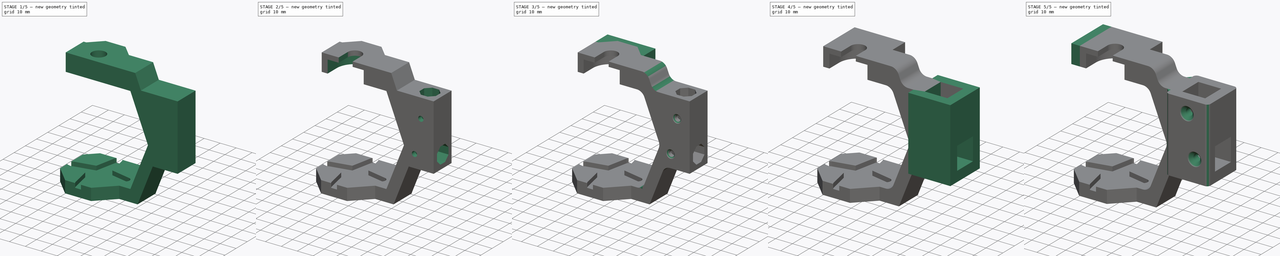
[diagram: build sequence overview — one tinted view per stage of 5, left to right]
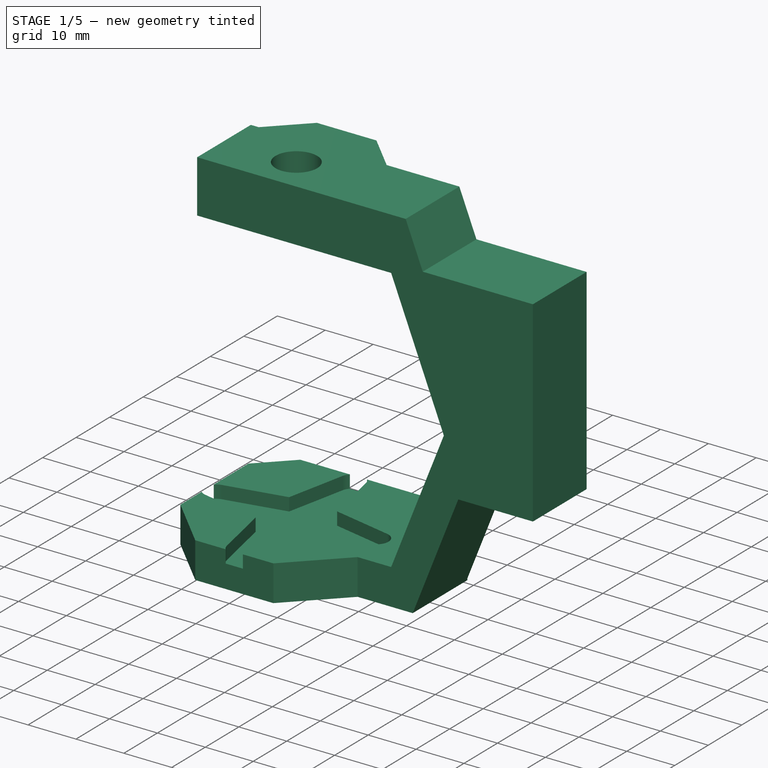
[diagram: stage 1 of 5 — iso view after this stage's code; geometry added in this stage tinted green]
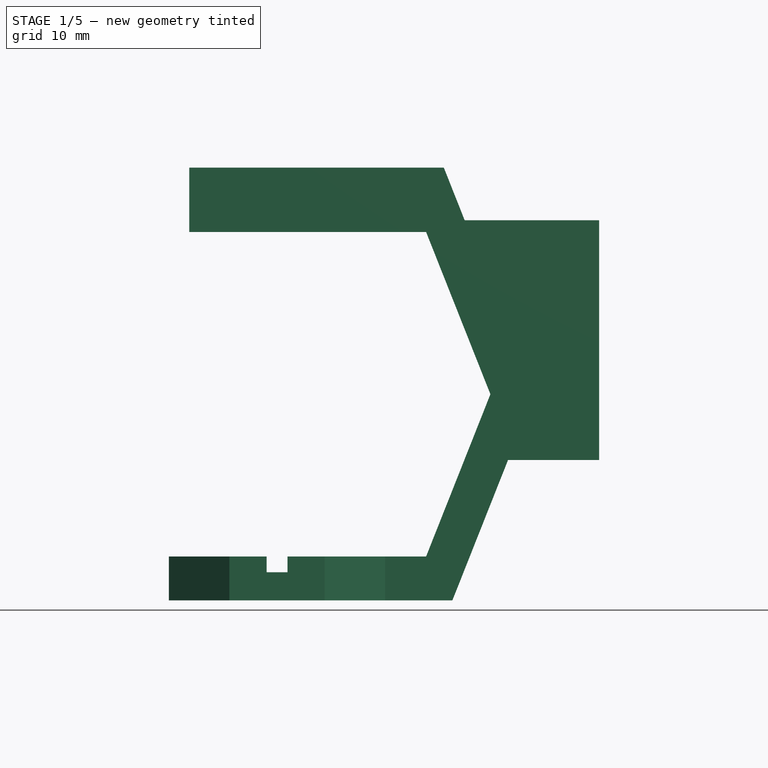
[diagram: stage 1 of 5 — front view after this stage's code; geometry added in this stage tinted green]
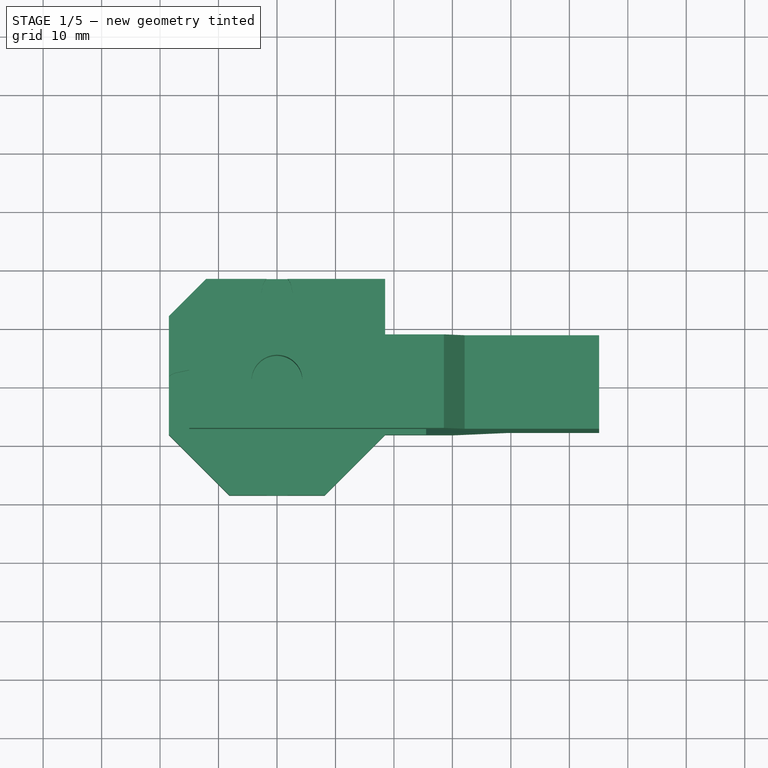
[diagram: stage 1 of 5 — top view after this stage's code; geometry added in this stage tinted green]
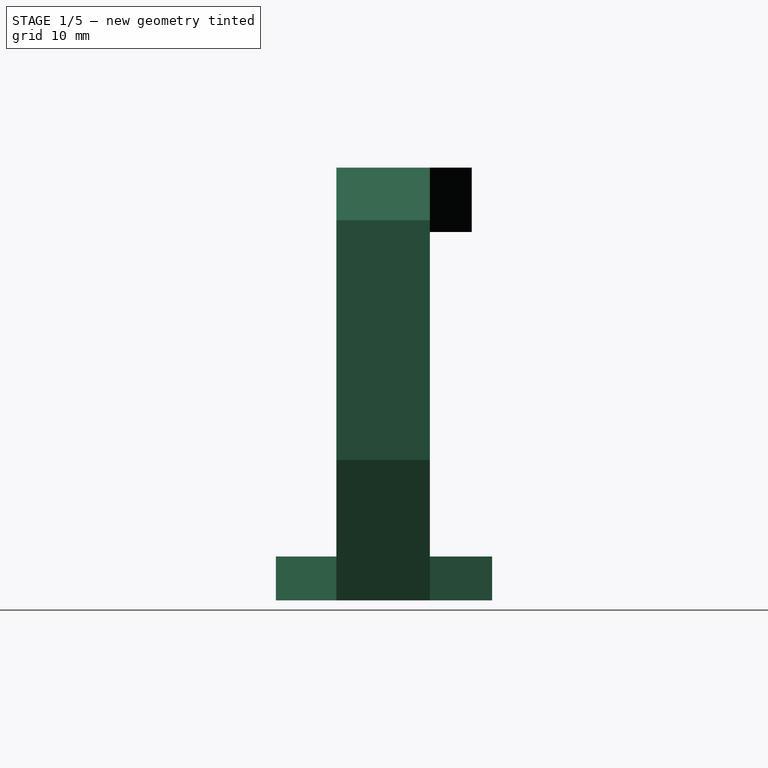
[diagram: stage 1 of 5 — right view after this stage's code; geometry added in this stage tinted green]
FCSTD DOCUMENT  (FreeCAD 0.17R13634 (Git))
Label: SG5010ForkBearing V7
Comment: V3: Added a 1mm triangle to lock the bearing\nV4: Star: Tightened the center: 10.5 -> 10.0 mm
License: All rights reserved
LicenseURL: http://en.wikipedia.org/wiki/All_rights_reserved
objects: Sketcher::SketchObject×23, PartDesign::Pocket×16, PartDesign::Pad×7, PartDesign::Fillet×3, PartDesign::Chamfer×3, PartDesign::Body×1
note: 76 computed .brp shape members not serialized (recipe doc carries the construction recipe); baked Part::Feature solids carry a one-line shape summary decoded from their .brp

FEATURE [Sketcher::SketchObject] Sketch  label="StarBase"
  MapMode = 5
  Support = -> [XY_Plane]
  sketch-geometry (16):
    g0: LineSegment StartX=-18.5 StartY=12.136 StartZ=0 EndX=-12.136 EndY=18.5 EndZ=0
    g1: LineSegment StartX=-12.136 StartY=18.5 StartZ=0 EndX=18.5 EndY=18.5 EndZ=0
    g2: LineSegment StartX=18.5 StartY=18.5 StartZ=0 EndX=18.5 EndY=8.15 EndZ=0
    g3: LineSegment StartX=18.5 StartY=8.15 StartZ=0 EndX=30 EndY=8.15 EndZ=0
    g4: LineSegment StartX=30 StartY=8.15 StartZ=0 EndX=30 EndY=-8.15 EndZ=0
    g5: LineSegment StartX=30 StartY=-8.15 StartZ=0 EndX=18.5 EndY=-8.15 EndZ=0
    g6: LineSegment StartX=18.5 StartY=-8.15 StartZ=0 EndX=8.15 EndY=-18.5 EndZ=0
    g7: LineSegment StartX=8.15 StartY=-18.5 StartZ=0 EndX=-8.15 EndY=-18.5 EndZ=0
    g8: LineSegment StartX=-8.15 StartY=-18.5 StartZ=0 EndX=-18.5 EndY=-8.15 EndZ=0
    g9: LineSegment StartX=-18.5 StartY=-8.15 StartZ=0 EndX=-18.5 EndY=12.136 EndZ=0
    g10: LineSegment [constr] StartX=6.55 StartY=18.5 StartZ=0 EndX=6.55 EndY=0 EndZ=0
    g11: LineSegment [constr] StartX=0 StartY=11.81 StartZ=0 EndX=18.5 EndY=11.81 EndZ=0
    g12: LineSegment [constr] StartX=18.5 StartY=8.15 StartZ=0 EndX=30 EndY=-8.15 EndZ=0
    g13: LineSegment [constr] StartX=30 StartY=8.15 StartZ=0 EndX=18.5 EndY=-8.15 EndZ=0
    g14: GeomPoint X=24.25 Y=0 Z=0
    g15: GeomPoint X=24.25 Y=0 Z=0
  constraints (45):
    c: Coincident(g0,g1)
    c: Horizontal(g1)
    c: Coincident(g1,g2)
    c: Vertical(g2)
    c: Coincident(g2,g3)
    c: Horizontal(g3)
    c: Coincident(g3,g4)
    c: Vertical(g4)
    c: Coincident(g4,g5)
    c: Horizontal(g5)
    c: Coincident(g5,g6)
    c: Coincident(g6,g7)
    c: Horizontal(g7)
    c: Coincident(g7,g8)
    c: Coincident(g8,g9)
    c: Coincident(g9,g0)
    c: Vertical(g9)
    c: DistanceX(g0,g1) = 37
    c: DistanceY(g6,g1) = 37
    c: DistanceX(g2,g5) = 0
    c: Angle(g6) = -2.35619
    c: Angle(g8) = 2.35619
    c: Angle(g0) = 0.785398
    c: PointOnObject(g10,g1)
    c: PointOnObject(g10,g-1)
    c: Vertical(g10)
    c: PointOnObject(g11,g-2)
    c: PointOnObject(g11,g2)
    c: Horizontal(g11)
    c: Equal(g10,g11)
    c: Distance(g11) = 18.5
    c: Distance(g4) = 16.3
    c: Distance(g0) = 9
    c: Equal(g8,g6)
    c: Coincident(g12,g2)
    c: Coincident(g12,g4)
    c: Coincident(g13,g3)
    c: Coincident(g13,g5)
    c: PointOnObject(g14,g13)
    c: Coincident(g15,g14)
    c: PointOnObject(g14,g12)
    c: PointOnObject(g14,g-1)
    c: DistanceX(g-2,g10) = 6.55
    c: Distance(g11,g1) = 6.69
    c: Distance(g3) = 11.5
FEATURE [PartDesign::Pad] Pad  label="Pad - StarBase"
  Length = 7.5
  Length2 = 100
  Profile = -> Sketch
  Type = 0
FEATURE [Sketcher::SketchObject] Sketch001  label="Star"
  MapMode = 5
  Placement = pos=(0,0,7.5) rot=(0,0,1;0rad)
  Support = -> [Pad]
  sketch-geometry (21):
    g0: ArcOfCircle CenterX=0 CenterY=16.75 CenterZ=0 NormalX=0 NormalY=0 NormalZ=1 AngleXU=0 Radius=2.5 StartAngle=0.205271 EndAngle=2.93632
    g1: ArcOfCircle CenterX=-16.75 CenterY=0 CenterZ=0 NormalX=0 NormalY=0 NormalZ=1 AngleXU=0 Radius=2.5 StartAngle=1.77607 EndAngle=4.50712
    g2: ArcOfCircle CenterX=0 CenterY=-16.75 CenterZ=0 NormalX=0 NormalY=0 NormalZ=1 AngleXU=0 Radius=2.5 StartAngle=3.34686 EndAngle=6.07791
    g3: ArcOfCircle CenterX=16.75 CenterY=0 CenterZ=0 NormalX=0 NormalY=0 NormalZ=1 AngleXU=0 Radius=2.5 StartAngle=4.91766 EndAngle=7.64871
    g4: GeomPoint X=-5 Y=5 Z=0
    g5: GeomPoint X=5 Y=5 Z=0
    g6: GeomPoint X=5 Y=-5 Z=0
    g7: GeomPoint X=-5 Y=-5 Z=0
    g8: LineSegment StartX=-2.44751 StartY=17.2596 StartZ=0 EndX=-5 EndY=5 EndZ=0
    g9: LineSegment StartX=-5 StartY=5 StartZ=0 EndX=-17.2596 EndY=2.44751 EndZ=0
    g10: LineSegment StartX=-17.2596 StartY=-2.44751 StartZ=0 EndX=-5 EndY=-5 EndZ=0
    g11: LineSegment StartX=-5 StartY=-5 StartZ=0 EndX=-2.44751 EndY=-17.2596 EndZ=0
    g12: LineSegment StartX=2.44751 StartY=-17.2596 StartZ=0 EndX=5 EndY=-5 EndZ=0
    g13: LineSegment StartX=5 StartY=-5 StartZ=0 EndX=17.2596 EndY=-2.44751 EndZ=0
    g14: LineSegment StartX=17.2596 StartY=2.44751 StartZ=0 EndX=5 EndY=5 EndZ=0
    g15: LineSegment StartX=5 StartY=5 StartZ=0 EndX=2.44751 EndY=17.2596 EndZ=0
    g16: LineSegment [constr] StartX=0 StartY=0 StartZ=0 EndX=16.75 EndY=0 EndZ=0
    g17: LineSegment [constr] StartX=0 StartY=0 StartZ=0 EndX=0 EndY=16.75 EndZ=0
    g18: GeomPoint X=0 Y=19.25 Z=0
    g19: GeomPoint X=0 Y=19.25 Z=0
    g20: GeomPoint X=0 Y=-19.25 Z=0
  constraints (41):
    c: PointOnObject(g0,g-2)
    c: PointOnObject(g1,g-1)
    c: PointOnObject(g2,g-2)
    c: Equal(g0,g3)
    c: Equal(g3,g2)
    c: Equal(g2,g1)
    c: Symmetric(g1,g3,g-2)
    c: Symmetric(g0,g2,g-1)
    c: Symmetric(g4,g5,g-2)
    c: Symmetric(g5,g6,g-1)
    c: Symmetric(g6,g7,g-2)
    c: Coincident(g8,g4)
    c: Coincident(g9,g4)
    c: Coincident(g10,g7)
    c: Coincident(g11,g7)
    c: Coincident(g12,g6)
    c: Coincident(g13,g6)
    c: Coincident(g14,g5)
    c: Coincident(g15,g5)
    c: Coincident(g16,g-1)
    c: Coincident(g16,g3)
    c: Coincident(g17,g-1)
    c: Coincident(g17,g0)
    c: Equal(g17,g16)
    c: Tangent(g8,g0) = -1.5708
    c: Tangent(g15,g0) = -1.5708
    c: Tangent(g13,g3) = -1.5708
    c: Distance(g5,g6) = 10
    c: PointOnObject(g18,g0)
    c: Coincident(g19,g18)
    c: PointOnObject(g18,g-2)
    c: PointOnObject(g20,g-2)
    c: PointOnObject(g20,g2)
    c: Distance(g20,g18) = 38.5
    c: Distance(g7,g6) = 10
    c: Tangent(g12,g2) = -1.5708
    c: Tangent(g11,g2) = -1.5708
    c: Tangent(g10,g1) = -1.5708
    c: Tangent(g9,g1) = -1.5708
    c: Tangent(g14,g3) = -1.5708
    c: Radius(g0) = 2.5
FEATURE [PartDesign::Pocket] Pocket  label="Pocket - Star"
  BaseFeature = -> Pad
  Length = 2.7
  Length2 = 100
  Profile = -> Sketch001
  Type = 0
FEATURE [Sketcher::SketchObject] Sketch002  label="ForkProfile"
  ExternalGeometry = -> [Pocket]
  MapMode = 5
  Placement = pos=(0,-8.15,0) rot=(1,0,0;1.5708rad)
  Support = -> [Pocket]
  sketch-geometry (12):
    g0: LineSegment StartX=30 StartY=0 StartZ=0 EndX=39.5135 EndY=24 EndZ=0
    g1: LineSegment StartX=39.5135 StartY=24 StartZ=0 EndX=55.1 EndY=24 EndZ=0
    g2: LineSegment StartX=55.1 StartY=24 StartZ=0 EndX=55.1 EndY=65 EndZ=0
    g3: LineSegment StartX=55.1 StartY=65 StartZ=0 EndX=32.1 EndY=65 EndZ=0
    g4: LineSegment StartX=32.1 StartY=65 StartZ=0 EndX=28.5324 EndY=74 EndZ=0
    g5: LineSegment StartX=28.5324 StartY=74 StartZ=0 EndX=-25.5 EndY=74 EndZ=0
    g6: LineSegment StartX=-25.5 StartY=74 StartZ=0 EndX=-25.5 EndY=63 EndZ=0
    g7: LineSegment StartX=-25.5 StartY=63 StartZ=0 EndX=25.5 EndY=63 EndZ=0
    g8: LineSegment StartX=25.5 StartY=63 StartZ=0 EndX=36.5 EndY=35.25 EndZ=0
    g9: GeomPoint X=47.1 Y=65 Z=0
    g10: LineSegment StartX=36.5 StartY=35.25 StartZ=0 EndX=25.5 EndY=7.5 EndZ=0
    g11: LineSegment StartX=30 StartY=0 StartZ=0 EndX=25.5 EndY=7.5 EndZ=0
  constraints (34):
    c: Coincident(g-4,g0)
    c: Coincident(g0,g1)
    c: Horizontal(g1)
    c: Coincident(g1,g2)
    c: Vertical(g2)
    c: Coincident(g2,g3)
    c: Horizontal(g3)
    c: Coincident(g3,g4)
    c: Coincident(g4,g5)
    c: Horizontal(g5)
    c: Coincident(g5,g6)
    c: Vertical(g6)
    c: Coincident(g6,g7)
    c: Horizontal(g7)
    c: Coincident(g7,g8)
    c: Distance(g3) = 23
    c: Distance(g2) = 41
    c: PointOnObject(g9,g3)
    c: DistanceX(g9,g2) = 8
    c: DistanceX(g-2,g9) = 47.1
    c: Coincident(g10,g8)
    c: PointOnObject(g10,g-3)
    c: Parallel(g0,g10)
    c: Distance(g10,g-3) = 7
    c: Parallel(g8,g4)
    c: Equal(g8,g10)
    c: DistanceX(g10,g8) = 11
    c: DistanceY(g-3,g7) = 55.5
    c: DistanceY(g0,g0) = 24
    c: DistanceX(g7,g10) = 0
    c: Distance(g6) = 11
    c: Symmetric(g6,g7,g-2)
    c: Coincident(g11,g0)
    c: Coincident(g11,g10)
FEATURE [PartDesign::Pad] Pad001  label="Pad - ForkProfile"
  BaseFeature = -> Pocket
  Length = 16
  Length2 = 100
  Profile = -> Sketch002
  Reversed = true
  Type = 0
FEATURE [Sketcher::SketchObject] Sketch003  label="BearingOctagon"
  MapMode = 5
  Placement = pos=(0,0,74) rot=(0,0,1;0rad)
  Support = -> [Pad001]
  sketch-geometry (9):
    g0: LineSegment StartX=6.2132 StartY=-15 StartZ=0 EndX=15 EndY=-6.2132 EndZ=0
    g1: LineSegment StartX=15 StartY=-6.2132 StartZ=0 EndX=15 EndY=6.2132 EndZ=0
    g2: LineSegment StartX=15 StartY=6.2132 StartZ=0 EndX=6.2132 EndY=15 EndZ=0
    g3: LineSegment StartX=6.2132 StartY=15 StartZ=0 EndX=-6.2132 EndY=15 EndZ=0
    g4: LineSegment StartX=-6.2132 StartY=15 StartZ=0 EndX=-15 EndY=6.2132 EndZ=0
    g5: LineSegment StartX=-15 StartY=6.2132 StartZ=0 EndX=-15 EndY=-6.2132 EndZ=0
    g6: LineSegment StartX=-15 StartY=-6.2132 StartZ=0 EndX=-6.2132 EndY=-15 EndZ=0
    g7: LineSegment StartX=-6.2132 StartY=-15 StartZ=0 EndX=6.2132 EndY=-15 EndZ=0
    g8: Circle [constr] CenterX=0 CenterY=0 CenterZ=0 NormalX=0 NormalY=0 NormalZ=1 AngleXU=0 Radius=16.2359
  constraints (20):
    c: Coincident(g0,g1)
    c: Coincident(g1,g2)
    c: Coincident(g2,g3)
    c: Coincident(g3,g4)
    c: Coincident(g4,g5)
    c: Coincident(g5,g6)
    c: Coincident(g6,g7)
    c: Coincident(g7,g0)
    c: Equal(g0, g1-g7) x7
    c: PointOnObject(g0,g8)
    c: PointOnObject(g1,g8)
    c: PointOnObject(g2,g8)
    c: PointOnObject(g3,g8)
    c: PointOnObject(g4,g8)
    c: PointOnObject(g5,g8)
    c: PointOnObject(g6,g8)
    c: PointOnObject(g7,g8)
    c: Horizontal(g3)
    c: Distance(g4,g1) = 30
    c: Coincident(g8,g-1)
FEATURE [PartDesign::Pad] Pad002  label="Pad - BearingOctagon"
  BaseFeature = -> Pad001
  Length = 11
  Length2 = 100
  Profile = -> Sketch003
  Reversed = true
  Type = 0
FEATURE [Sketcher::SketchObject] Sketch004  label="BearingOctagonCut"
  ExternalGeometry = -> [Pad002]
  MapMode = 5
  Placement = pos=(0,0,63) rot=(1,0,0;3.14159rad)
  Support = -> [Pad002]
  sketch-geometry (6):
    g0: LineSegment StartX=13.0632 StartY=8.15 StartZ=0 EndX=13.0632 EndY=25.4 EndZ=0
    g1: LineSegment StartX=13.0632 StartY=25.4 StartZ=0 EndX=-41.22 EndY=25.4 EndZ=0
    g2: LineSegment StartX=-41.22 StartY=25.4 StartZ=0 EndX=-41.22 EndY=-11.13 EndZ=0
    g3: LineSegment StartX=-41.22 StartY=-11.13 StartZ=0 EndX=-15 EndY=-11.13 EndZ=0
    g4: LineSegment StartX=-15 StartY=-11.13 StartZ=0 EndX=-15 EndY=8.15 EndZ=0
    g5: LineSegment StartX=-15 StartY=8.15 StartZ=0 EndX=13.0632 EndY=8.15 EndZ=0
  constraints (17):
    c: Coincident(g-3,g0)
    c: Vertical(g0)
    c: Coincident(g0,g1)
    c: Horizontal(g1)
    c: Coincident(g1,g2)
    c: Vertical(g2)
    c: Coincident(g2,g3)
    c: Horizontal(g3)
    c: Coincident(g3,g4)
    c: Vertical(g4)
    c: Coincident(g4,g5)
    c: Coincident(g5,g0)
    c: Horizontal(g5)
    c: PointOnObject(g-6,g4)
    c: Distance(g3) = 26.22
    c: Distance(g2) = 36.53
    c: Distance(g0) = 17.25
FEATURE [PartDesign::Pocket] Pocket001  label="Pocket - BearingOctagonCut"
  BaseFeature = -> Pad002
  Length = 5
  Length2 = 100
  Profile = -> Sketch004
  Type = 1
FEATURE [Sketcher::SketchObject] Sketch005  label="AxisHole"
  MapMode = 5
  Placement = pos=(0,0,74) rot=(0,0,1;0rad)
  Support = -> [Pocket001]
  sketch-geometry (1):
    g0: Circle CenterX=0 CenterY=0 CenterZ=0 NormalX=0 NormalY=0 NormalZ=1 AngleXU=0 Radius=4.35
  constraints (2):
    c: Coincident(g0,g-1)
    c: Radius(g0) = 4.35
FEATURE [PartDesign::Pocket] Pocket002  label="Pocket - AxisHole"
  BaseFeature = -> Pocket001
  Length = 11
  Length2 = 100
  Profile = -> Sketch005
  Type = 0
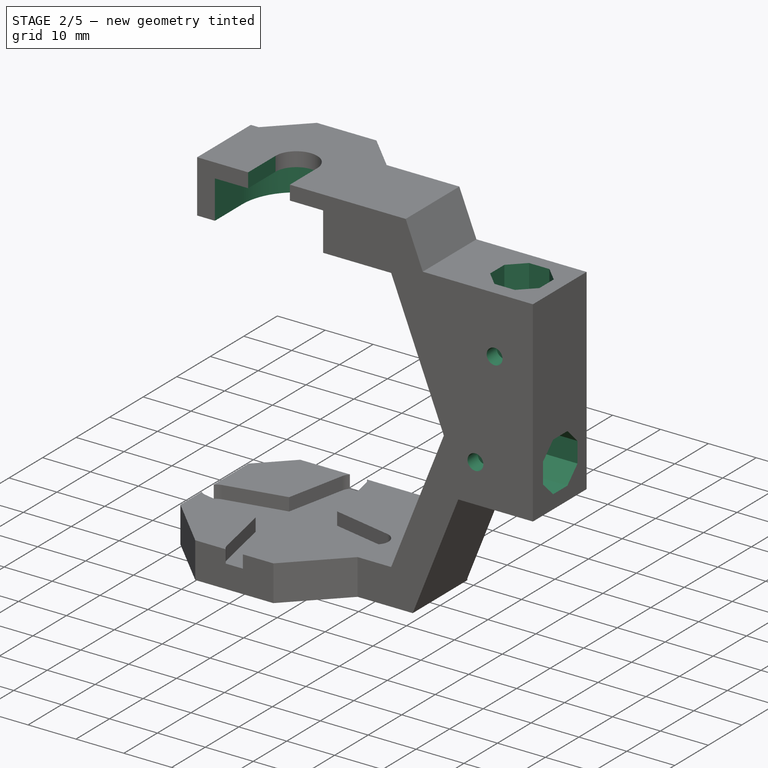
[diagram: stage 2 of 5 — iso view after this stage's code; geometry added in this stage tinted green]
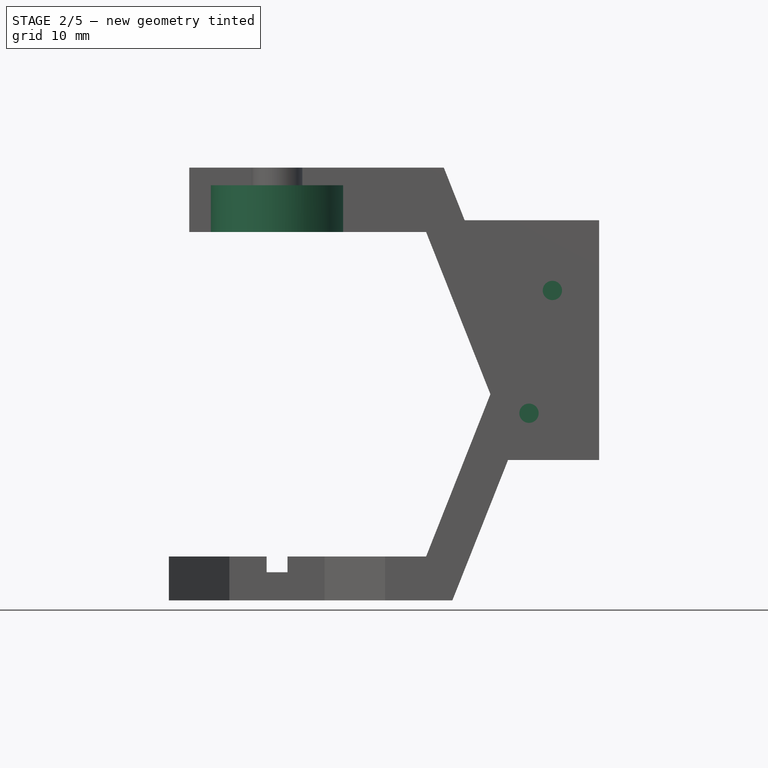
[diagram: stage 2 of 5 — front view after this stage's code; geometry added in this stage tinted green]
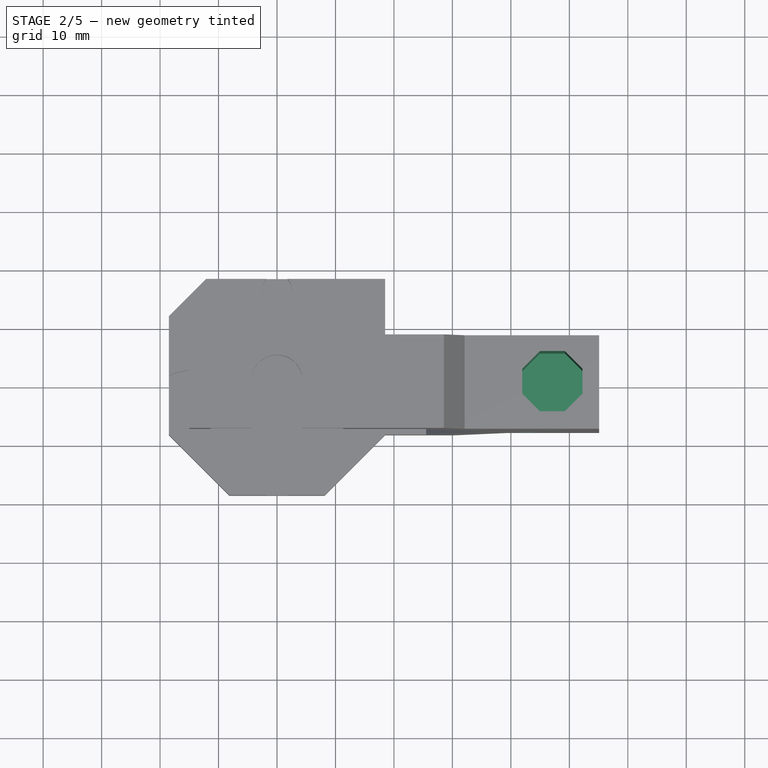
[diagram: stage 2 of 5 — top view after this stage's code; geometry added in this stage tinted green]
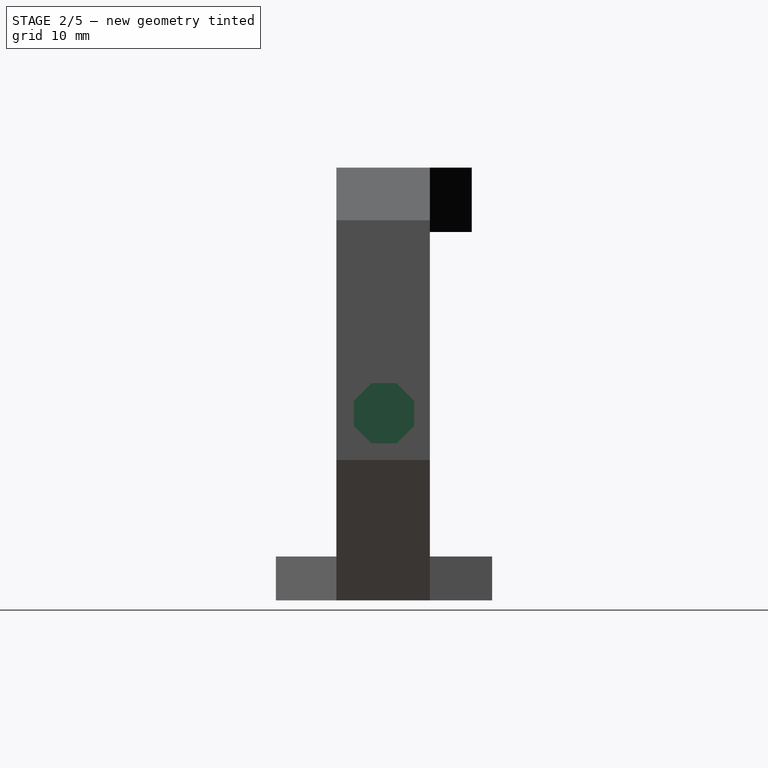
[diagram: stage 2 of 5 — right view after this stage's code; geometry added in this stage tinted green]
FEATURE [Sketcher::SketchObject] Sketch006  label="BearingDisk"
  MapMode = 5
  Placement = pos=(0,0,63) rot=(1,0,0;3.14159rad)
  Support = -> [Pocket002]
  sketch-geometry (1):
    g0: Circle CenterX=0 CenterY=0 CenterZ=0 NormalX=0 NormalY=0 NormalZ=1 AngleXU=0 Radius=11.3
  constraints (2):
    c: Coincident(g0,g-1)
    c: Radius(g0) = 11.3
FEATURE [PartDesign::Pocket] Pocket003  label="Pocket - BearingDisk"
  BaseFeature = -> Pocket002
  Length = 8
  Length2 = 100
  Profile = -> Sketch006
  Type = 0
FEATURE [Sketcher::SketchObject] Sketch007  label="BearingOpeningCut"
  ExternalGeometry = -> [Pocket003]
  MapMode = 5
  Placement = pos=(0,0,63) rot=(1,0,0;3.14159rad)
  Support = -> [Pocket003]
  sketch-geometry (6):
    g0: GeomPoint X=-11.3 Y=0 Z=0
    g1: GeomPoint X=-11.3 Y=0 Z=0
    g2: LineSegment StartX=11.3 StartY=0 StartZ=0 EndX=11.3 EndY=20.74 EndZ=0
    g3: LineSegment StartX=11.3 StartY=20.74 StartZ=0 EndX=-11.3 EndY=20.74 EndZ=0
    g4: LineSegment StartX=-11.3 StartY=20.74 StartZ=0 EndX=-11.3 EndY=0 EndZ=0
    g5: LineSegment StartX=-11.3 StartY=0 StartZ=0 EndX=11.3 EndY=0 EndZ=0
  constraints (14):
    c: PointOnObject(g0,g-1)
    c: Coincident(g1,g0)
    c: PointOnObject(g0,g-3)
    c: Coincident(g-4,g2)
    c: Coincident(g2,g3)
    c: Horizontal(g3)
    c: Coincident(g3,g4)
    c: PointOnObject(g4,g-1)
    c: Coincident(g4,g5)
    c: Coincident(g5,g2)
    c: Coincident(g0,g4)
    c: Vertical(g4)
    c: Vertical(g2)
    c: Distance(g2) = 20.74
FEATURE [PartDesign::Pocket] Pocket004  label="Pocket - BearingOpeningCut"
  BaseFeature = -> Pocket003
  Length = 8
  Length2 = 100
  Profile = -> Sketch007
  Type = 0
FEATURE [Sketcher::SketchObject] Sketch008  label="AxisHoleOpeningCut"
  ExternalGeometry = -> [Pocket004]
  MapMode = 5
  Placement = pos=(0,0,71) rot=(1,0,0;3.14159rad)
  Support = -> [Pocket004]
  sketch-geometry (4):
    g0: LineSegment StartX=4.35 StartY=0 StartZ=0 EndX=-4.35 EndY=0 EndZ=0
    g1: LineSegment StartX=-4.35 StartY=0 StartZ=0 EndX=-4.35 EndY=16.04 EndZ=0
    g2: LineSegment StartX=-4.35 StartY=16.04 StartZ=0 EndX=4.35 EndY=16.04 EndZ=0
    g3: LineSegment StartX=4.35 StartY=16.04 StartZ=0 EndX=4.35 EndY=0 EndZ=0
  constraints (11):
    c: Coincident(g0,g1)
    c: Coincident(g1,g2)
    c: Coincident(g2,g3)
    c: Coincident(g3,g0)
    c: Horizontal(g0)
    c: Horizontal(g2)
    c: Vertical(g1)
    c: Vertical(g3)
    c: Coincident(g0,g-3)
    c: Coincident(g-3,g0)
    c: Distance(g3) = 16.04
FEATURE [PartDesign::Pocket] Pocket005  label="Pocket - AxisHoleOpeningCut"
  BaseFeature = -> Pocket004
  Length = 5
  Length2 = 100
  Profile = -> Sketch008
  Type = 0
FEATURE [Sketcher::SketchObject] Sketch009  label="BottomRodOctagon"
  ExternalGeometry = -> [Pocket005]
  MapMode = 5
  Placement = pos=(0,0,65) rot=(0,0,1;0rad)
  Support = -> [Pocket005]
  sketch-geometry (14):
    g0: LineSegment [constr] StartX=32.1 StartY=7.85 StartZ=0 EndX=55.1 EndY=-8.15 EndZ=0
    g1: LineSegment [constr] StartX=55.1 StartY=7.85 StartZ=0 EndX=32.1 EndY=-8.15 EndZ=0
    g2: GeomPoint X=43.6 Y=-0.15 Z=0
    g3: GeomPoint X=43.6 Y=-0.15 Z=0
    g4: GeomPoint X=47.1 Y=0 Z=0
    g5: LineSegment StartX=49.2332 StartY=-5.15 StartZ=0 EndX=52.25 EndY=-2.1332 EndZ=0
    g6: LineSegment StartX=52.25 StartY=-2.1332 StartZ=0 EndX=52.25 EndY=2.1332 EndZ=0
    g7: LineSegment StartX=52.25 StartY=2.1332 StartZ=0 EndX=49.2332 EndY=5.15 EndZ=0
    g8: LineSegment StartX=49.2332 StartY=5.15 StartZ=0 EndX=44.9668 EndY=5.15 EndZ=0
    g9: LineSegment StartX=44.9668 StartY=5.15 StartZ=0 EndX=41.95 EndY=2.1332 EndZ=0
    g10: LineSegment StartX=41.95 StartY=2.1332 StartZ=0 EndX=41.95 EndY=-2.1332 EndZ=0
    g11: LineSegment StartX=41.95 StartY=-2.1332 StartZ=0 EndX=44.9668 EndY=-5.15 EndZ=0
    g12: LineSegment StartX=44.9668 StartY=-5.15 StartZ=0 EndX=49.2332 EndY=-5.15 EndZ=0
    g13: Circle [constr] CenterX=47.1 CenterY=0 CenterZ=0 NormalX=0 NormalY=0 NormalZ=1 AngleXU=0 Radius=5.57432
  constraints (29):
    c: Coincident(g0,g-5)
    c: Coincident(g0,g-4)
    c: Coincident(g1,g-5)
    c: Coincident(g1,g-4)
    c: PointOnObject(g2,g1)
    c: Coincident(g3,g2)
    c: PointOnObject(g2,g0)
    c: PointOnObject(g4,g-1)
    c: Distance(g4,g-3) = 8
    c: Coincident(g5,g6)
    c: Coincident(g6,g7)
    c: Coincident(g7,g8)
    c: Coincident(g8,g9)
    c: Coincident(g9,g10)
    c: Coincident(g10,g11)
    c: Coincident(g11,g12)
    c: Coincident(g12,g5)
    c: Equal(g5, g6-g12) x7
    c: PointOnObject(g5,g13)
    c: PointOnObject(g6,g13)
    c: PointOnObject(g7,g13)
    c: PointOnObject(g8,g13)
    c: PointOnObject(g9,g13)
    c: PointOnObject(g10,g13)
    c: PointOnObject(g11,g13)
    c: PointOnObject(g12,g13)
    c: Horizontal(g8)
    c: Distance(g9,g6) = 10.3
    c: Coincident(g4,g13)
FEATURE [PartDesign::Pocket] Pocket006  label="Pocket - BotomRodOctagon"
  BaseFeature = -> Pocket005
  Length = 25
  Length2 = 100
  Profile = -> Sketch009
  Type = 0
FEATURE [Sketcher::SketchObject] Sketch010  label="SideOctagon"
  ExternalGeometry = -> [Pocket006]
  MapMode = 5
  Placement = pos=(55.1,0,0) rot=(0.57735,0.57735,0.57735;2.0944rad)
  Support = -> [Pocket006]
  sketch-geometry (10):
    g0: GeomPoint X=0 Y=32 Z=0
    g1: LineSegment StartX=2.1332 StartY=26.85 StartZ=0 EndX=5.15 EndY=29.8668 EndZ=0
    g2: LineSegment StartX=5.15 StartY=29.8668 StartZ=0 EndX=5.15 EndY=34.1332 EndZ=0
    g3: LineSegment StartX=5.15 StartY=34.1332 StartZ=0 EndX=2.1332 EndY=37.15 EndZ=0
    g4: LineSegment StartX=2.1332 StartY=37.15 StartZ=0 EndX=-2.1332 EndY=37.15 EndZ=0
    g5: LineSegment StartX=-2.1332 StartY=37.15 StartZ=0 EndX=-5.15 EndY=34.1332 EndZ=0
    g6: LineSegment StartX=-5.15 StartY=34.1332 StartZ=0 EndX=-5.15 EndY=29.8668 EndZ=0
    g7: LineSegment StartX=-5.15 StartY=29.8668 StartZ=0 EndX=-2.1332 EndY=26.85 EndZ=0
    g8: LineSegment StartX=-2.1332 StartY=26.85 StartZ=0 EndX=2.1332 EndY=26.85 EndZ=0
    g9: Circle [constr] CenterX=0 CenterY=32 CenterZ=0 NormalX=0 NormalY=0 NormalZ=1 AngleXU=0 Radius=5.57432
  constraints (22):
    c: PointOnObject(g0,g-2)
    c: Distance(g0,g-3) = 8
    c: Coincident(g1,g2)
    c: Coincident(g2,g3)
    c: Coincident(g3,g4)
    c: Coincident(g4,g5)
    c: Coincident(g5,g6)
    c: Coincident(g6,g7)
    c: Coincident(g7,g8)
    c: Coincident(g8,g1)
    c: Equal(g1, g2-g8) x7
    c: PointOnObject(g1,g9)
    c: PointOnObject(g2,g9)
    c: PointOnObject(g3,g9)
    c: PointOnObject(g4,g9)
    c: PointOnObject(g5,g9)
    c: PointOnObject(g6,g9)
    c: PointOnObject(g7,g9)
    c: PointOnObject(g8,g9)
    c: Horizontal(g4)
    c: Distance(g5,g2) = 10.3
    c: Coincident(g9,g0)
FEATURE [PartDesign::Pocket] Pocket007  label="Pocket - SideOctagon"
  BaseFeature = -> Pocket006
  Length = 16
  Length2 = 100
  Profile = -> Sketch010
  Type = 0
FEATURE [Sketcher::SketchObject] Sketch012  label="SetScrewHoles2"
  MapMode = 5
  Placement = pos=(0,-8.15,0) rot=(1,0,0;1.5708rad)
  sketch-geometry (3):
    g0: LineSegment [constr] StartX=47.1 StartY=65 StartZ=0 EndX=47.1 EndY=24 EndZ=0
    g1: Circle CenterX=47.1 CenterY=53 CenterZ=0 NormalX=0 NormalY=0 NormalZ=1 AngleXU=0 Radius=1.65
    g2: Circle CenterX=43.1 CenterY=32 CenterZ=0 NormalX=0 NormalY=0 NormalZ=1 AngleXU=0 Radius=1.65
  constraints (6):
    c: Vertical(g0)
    c: PointOnObject(g1,g0)
    c: Equal(g1,g2)
    c: Distance(g0,g1) = 12
    c: DistanceY(g0,g2) = 8
    c: Radius(g1) = 1.65
FEATURE [PartDesign::Pocket] Pocket009  label="Pocket - SetScrewHoles2"
  BaseFeature = -> Pocket007
  Length = 5
  Length2 = 100
  Profile = -> Sketch012
  Type = 0
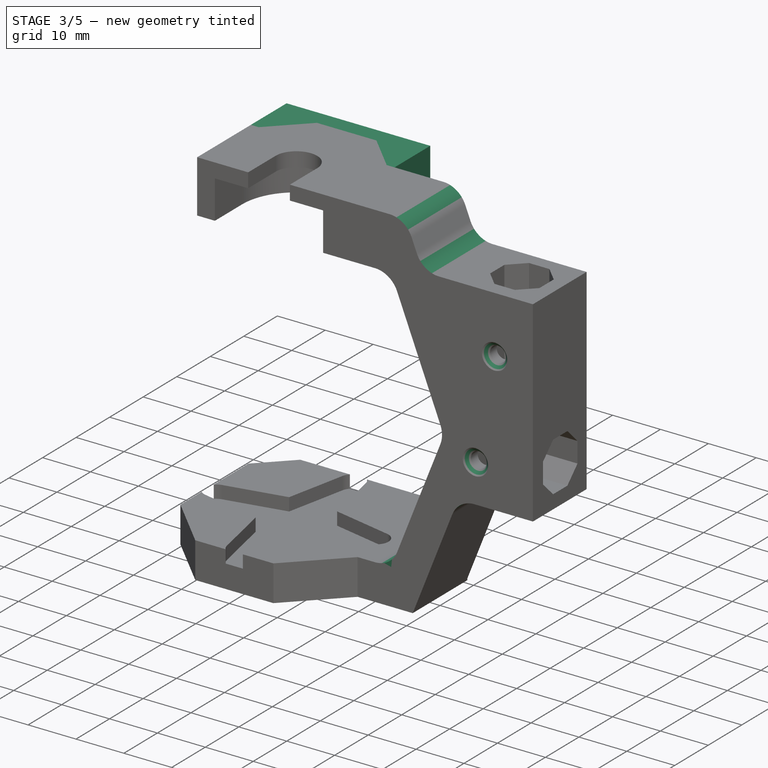
[diagram: stage 3 of 5 — iso view after this stage's code; geometry added in this stage tinted green]
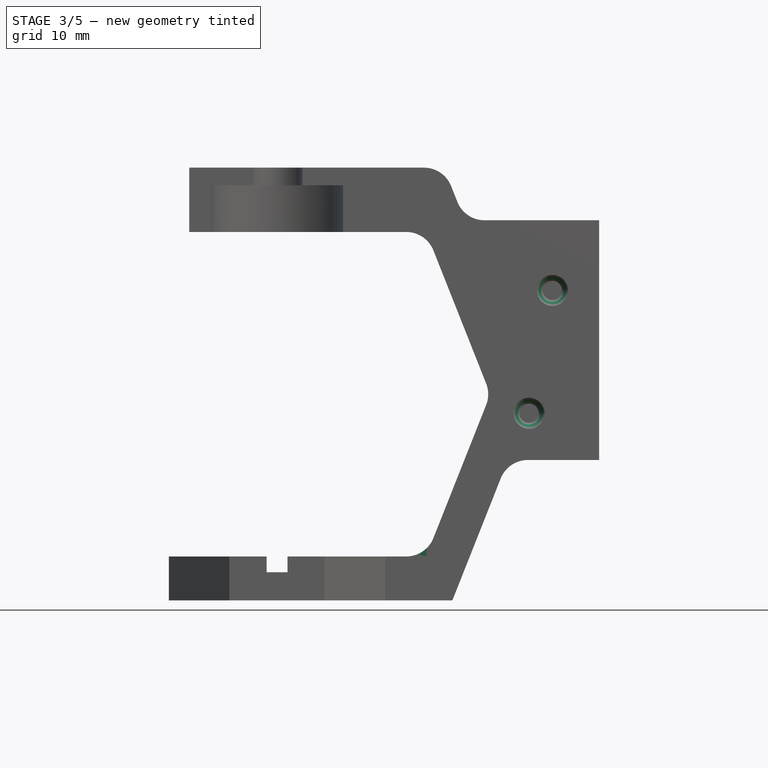
[diagram: stage 3 of 5 — front view after this stage's code; geometry added in this stage tinted green]
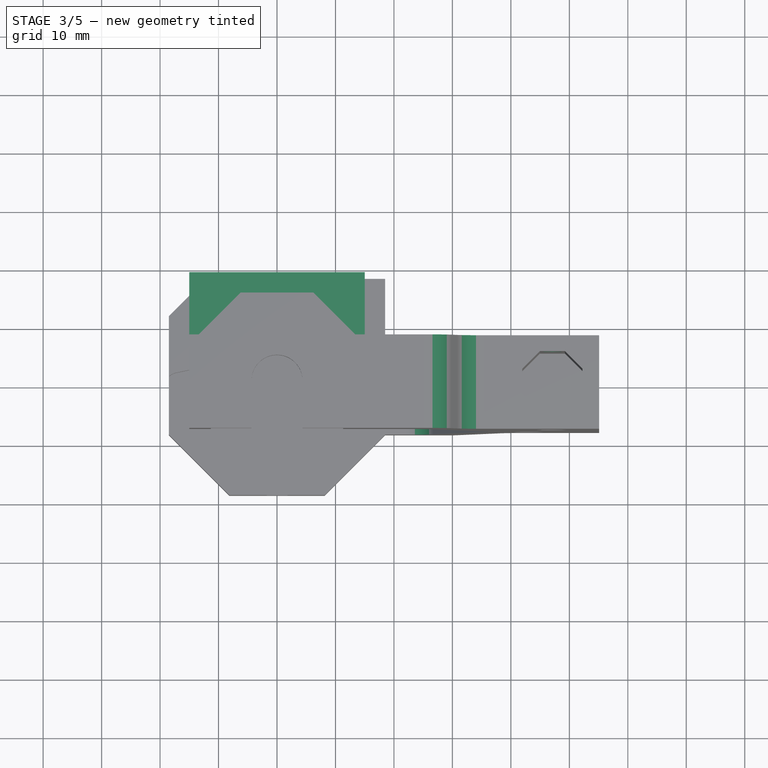
[diagram: stage 3 of 5 — top view after this stage's code; geometry added in this stage tinted green]
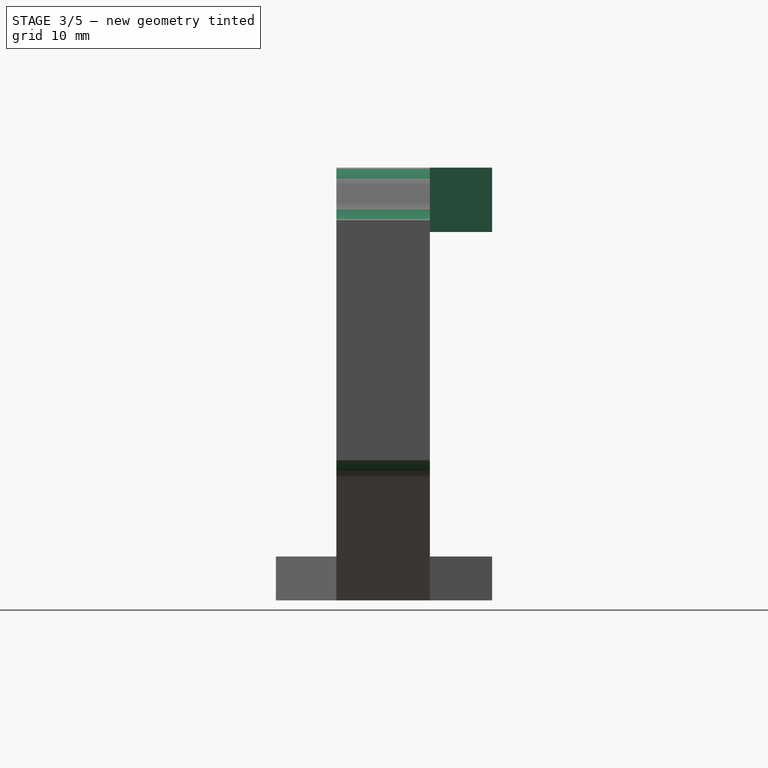
[diagram: stage 3 of 5 — right view after this stage's code; geometry added in this stage tinted green]
FEATURE [Sketcher::SketchObject] Sketch013  label="SetScrewHoles1"
  ExternalGeometry = -> [Pocket009]
  MapMode = 5
  Placement = pos=(0,7.85,0) rot=(0,0.707107,0.707107;3.14159rad)
  Support = -> [Pocket009]
  sketch-geometry (3):
    g0: LineSegment [constr] StartX=-47.1 StartY=65 StartZ=0 EndX=-47.1 EndY=24 EndZ=0
    g1: Circle CenterX=-47.1 CenterY=57 CenterZ=0 NormalX=0 NormalY=0 NormalZ=1 AngleXU=0 Radius=1.65
    g2: Circle CenterX=-47.1 CenterY=32 CenterZ=0 NormalX=0 NormalY=0 NormalZ=1 AngleXU=0 Radius=1.65
  constraints (10):
    c: Vertical(g0)
    c: DistanceY(g0,g-3) = 0
    c: DistanceY(g-3,g0) = 0
    c: Distance(g-3,g0) = 8
    c: PointOnObject(g1,g0)
    c: PointOnObject(g2,g0)
    c: Equal(g2,g1)
    c: DistanceY(g-3,g2) = 8
    c: DistanceY(g1,g-3) = 8
    c: Radius(g1) = 1.65
FEATURE [PartDesign::Pocket] Pocket010  label="Pocket - SetScrewHoles1"
  BaseFeature = -> Pocket009
  Length = 5
  Length2 = 100
  Profile = -> Sketch013
  Type = 0
FEATURE [PartDesign::Fillet] Fillet
  Base = -> Pocket010 [Edge118,Edge92,Edge67,Edge83]
  BaseFeature = -> Pocket010
  Radius = 5
FEATURE [PartDesign::Fillet] Fillet001
  Base = -> Fillet [Edge111,Edge109]
  BaseFeature = -> Fillet
  Radius = 5
FEATURE [PartDesign::Chamfer] Chamfer
  Base = -> Fillet001 [Edge21,Edge20,Edge101,Edge102]
  BaseFeature = -> Fillet001
  Size = 1
FEATURE [Sketcher::SketchObject] Sketch014  label="HeadLevelling"
  ExternalGeometry = -> [Chamfer]
  MapMode = 5
  Placement = pos=(0,0,74) rot=(0,0,1;0rad)
  Support = -> [Chamfer]
  sketch-geometry (10):
    g0: LineSegment StartX=15 StartY=-6.2132 StartZ=0 EndX=15 EndY=18.5 EndZ=0
    g1: LineSegment StartX=15 StartY=18.5 StartZ=0 EndX=-15 EndY=18.5 EndZ=0
    g2: LineSegment StartX=-15 StartY=18.5 StartZ=0 EndX=-15 EndY=-6.2132 EndZ=0
    g3: LineSegment StartX=-15 StartY=-6.2132 StartZ=0 EndX=-13 EndY=-6.2132 EndZ=0
    g4: LineSegment StartX=-13 StartY=-6.2132 StartZ=0 EndX=-13 EndY=6.2132 EndZ=0
    g5: LineSegment StartX=-13 StartY=6.2132 StartZ=0 EndX=-6.2132 EndY=13 EndZ=0
    g6: LineSegment StartX=-6.2132 StartY=13 StartZ=0 EndX=6.2132 EndY=13 EndZ=0
    g7: LineSegment StartX=6.2132 StartY=13 StartZ=0 EndX=13 EndY=6.2132 EndZ=0
    g8: LineSegment StartX=13 StartY=6.2132 StartZ=0 EndX=13 EndY=-6.2132 EndZ=0
    g9: LineSegment StartX=13 StartY=-6.2132 StartZ=0 EndX=15 EndY=-6.2132 EndZ=0
  constraints (28):
    c: Coincident(g0,g1)
    c: Coincident(g1,g2)
    c: Horizontal(g1)
    c: Vertical(g0)
    c: Vertical(g2)
    c: DistanceY(g-1,g1) = 18.5
    c: PointOnObject(g-5,g0)
    c: Coincident(g2,g3)
    c: Coincident(g3,g4)
    c: Vertical(g4)
    c: Coincident(g4,g5)
    c: Coincident(g5,g6)
    c: Horizontal(g6)
    c: Coincident(g6,g7)
    c: Coincident(g7,g8)
    c: Vertical(g8)
    c: Coincident(g8,g9)
    c: Coincident(g9,g0)
    c: Symmetric(g3,g8,g-2)
    c: Symmetric(g4,g7,g-2)
    c: Symmetric(g5,g6,g-2)
    c: Horizontal(g3)
    c: Coincident(g0,g-5)
    c: Coincident(g2,g-4)
    c: DistanceY(g4,g-4) = 0
    c: DistanceX(g5,g-3) = 0
    c: Distance(g3) = 2
    c: Distance(g6,g-3) = 2
FEATURE [PartDesign::Pad] Pad003  label="Pad - HeadLevelling"
  BaseFeature = -> Chamfer
  Length = 11
  Length2 = 100
  Profile = -> Sketch014
  Reversed = true
  Type = 0
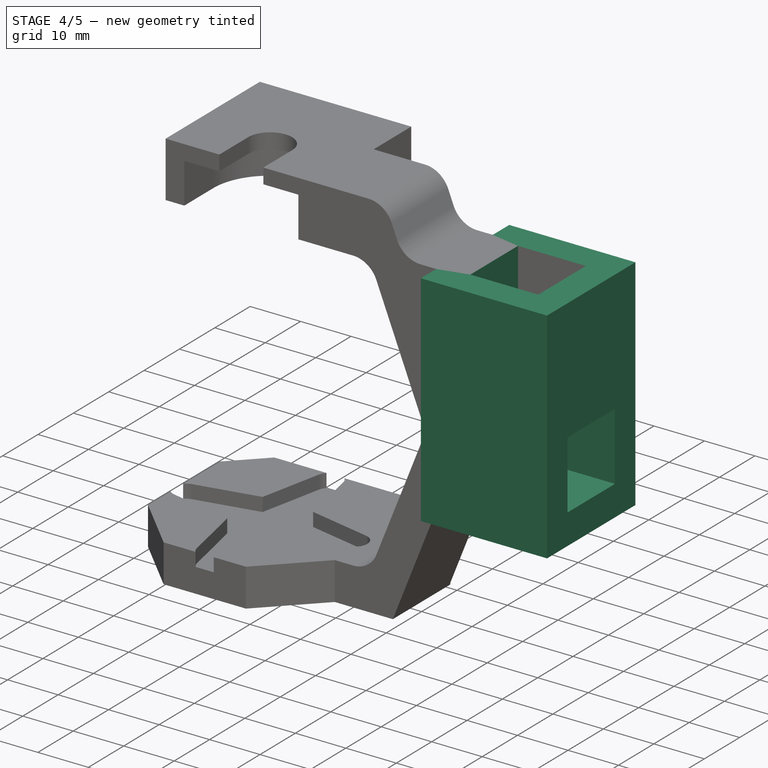
[diagram: stage 4 of 5 — iso view after this stage's code; geometry added in this stage tinted green]
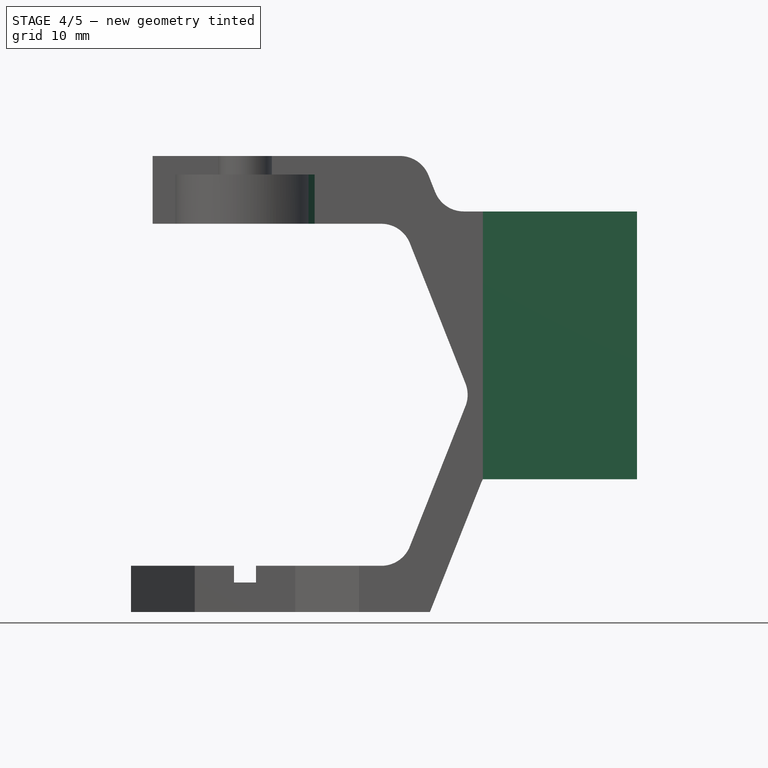
[diagram: stage 4 of 5 — front view after this stage's code; geometry added in this stage tinted green]
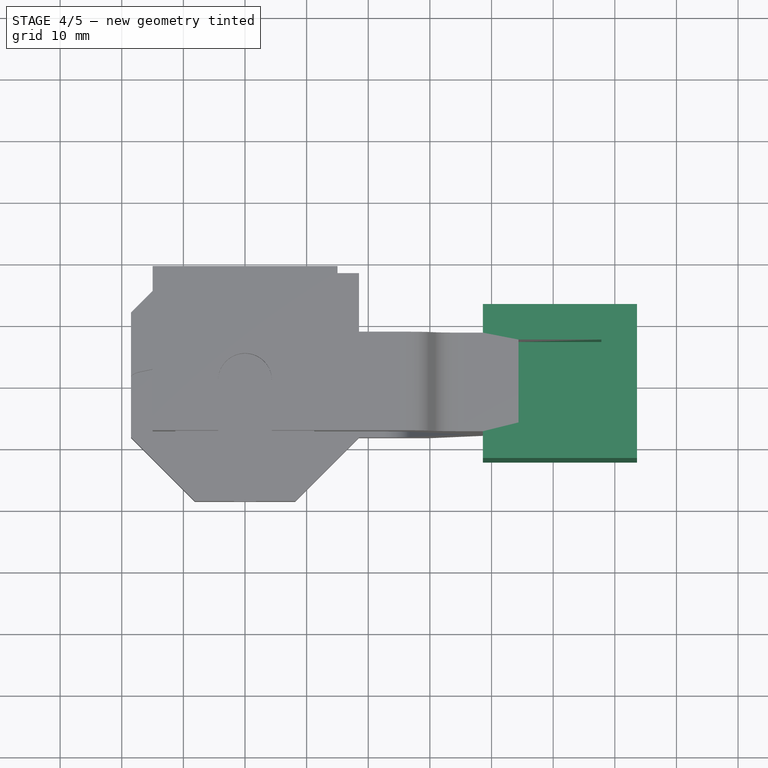
[diagram: stage 4 of 5 — top view after this stage's code; geometry added in this stage tinted green]
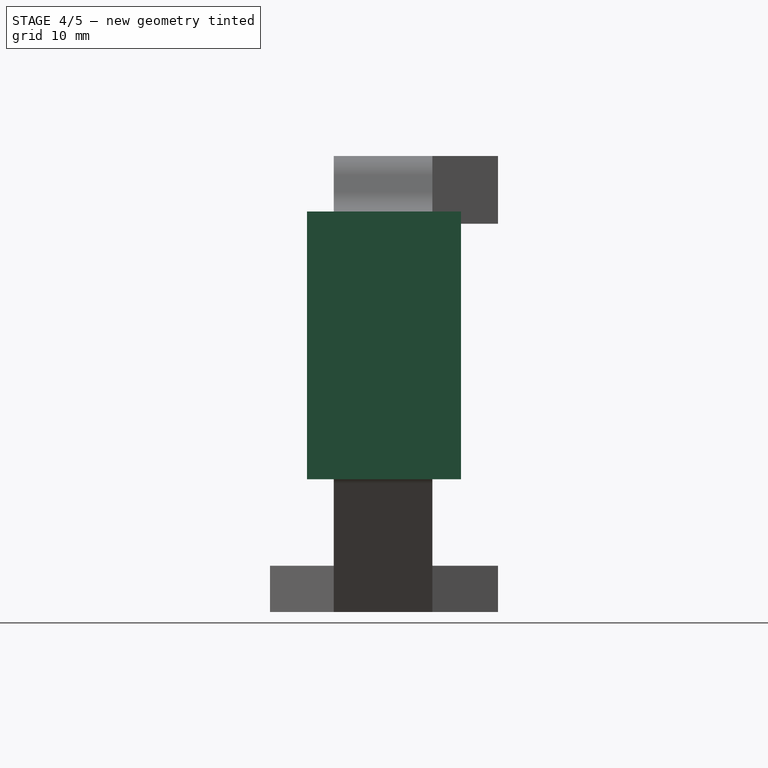
[diagram: stage 4 of 5 — right view after this stage's code; geometry added in this stage tinted green]
FEATURE [Sketcher::SketchObject] Sketch015  label="BearingLock"
  ExternalGeometry = -> [Pad003]
  MapMode = 5
  Placement = pos=(0,0,71) rot=(1,0,0;3.14159rad)
  Support = -> [Pad003]
  sketch-geometry (3):
    g0: LineSegment StartX=11.3 StartY=8.15 StartZ=0 EndX=11.3 EndY=4.15 EndZ=0
    g1: LineSegment StartX=11.3 StartY=4.15 StartZ=0 EndX=10.3 EndY=6.15 EndZ=0
    g2: LineSegment StartX=10.3 StartY=6.15 StartZ=0 EndX=11.3 EndY=8.15 EndZ=0
  constraints (8):
    c: Coincident(g-4,g0)
    c: Vertical(g0)
    c: Coincident(g0,g1)
    c: Coincident(g1,g2)
    c: Coincident(g2,g0)
    c: Equal(g1,g2)
    c: Distance(g1,g0) = 1
    c: Distance(g0) = 4
FEATURE [PartDesign::Pad] Pad004  label="Pad - BearingLock"
  BaseFeature = -> Pad003
  Length = 8
  Length2 = 100
  Profile = -> Sketch015
  Type = 0
FEATURE [Sketcher::SketchObject] Sketch016  label="base_cutter"
  ExternalGeometry = -> [Pad004]
  MapMode = 5
  Placement = pos=(0,7.85,0) rot=(0,0.707107,0.707107;3.14159rad)
  Support = -> [Pad004]
  sketch-geometry (4):
    g0: LineSegment StartX=-61.5 StartY=76.71 StartZ=0 EndX=-42.91 EndY=76.71 EndZ=0
    g1: LineSegment StartX=-42.91 StartY=76.71 StartZ=0 EndX=-42.91 EndY=17.14 EndZ=0
    g2: LineSegment StartX=-42.91 StartY=17.14 StartZ=0 EndX=-61.5 EndY=17.14 EndZ=0
    g3: LineSegment StartX=-61.5 StartY=17.14 StartZ=0 EndX=-61.5 EndY=76.71 EndZ=0
  constraints (12):
    c: Coincident(g0,g1)
    c: Coincident(g1,g2)
    c: Coincident(g2,g3)
    c: Coincident(g3,g0)
    c: Horizontal(g0)
    c: Horizontal(g2)
    c: Vertical(g1)
    c: Vertical(g3)
    c: PointOnObject(g-4,g1)
    c: Distance(g1) = 59.57
    c: Distance(g0) = 18.59
    c: DistanceY(g-3,g0) = 11.71
FEATURE [PartDesign::Pocket] Pocket011
  BaseFeature = -> Pad004
  Length = 5
  Length2 = 100
  Profile = -> Sketch016
  Type = 1
FEATURE [Sketcher::SketchObject] Sketch017  label="base_cutter2"
  ExternalGeometry = -> [Pocket011]
  MapMode = 5
  Placement = pos=(0,-8.15,0) rot=(1,0,0;1.5708rad)
  Support = -> [Pocket011]
  sketch-geometry (4):
    g0: LineSegment StartX=38.6 StartY=70.73 StartZ=0 EndX=54.01 EndY=70.73 EndZ=0
    g1: LineSegment StartX=54.01 StartY=70.73 StartZ=0 EndX=54.01 EndY=16.5 EndZ=0
    g2: LineSegment StartX=54.01 StartY=16.5 StartZ=0 EndX=38.6 EndY=16.5 EndZ=0
    g3: LineSegment StartX=38.6 StartY=16.5 StartZ=0 EndX=38.6 EndY=70.73 EndZ=0
  constraints (12):
    c: Coincident(g0,g1)
    c: Coincident(g1,g2)
    c: Coincident(g2,g3)
    c: Coincident(g3,g0)
    c: Horizontal(g0)
    c: Horizontal(g2)
    c: Vertical(g1)
    c: Vertical(g3)
    c: Distance(g2,g1) = 15.41
    c: Distance(g1) = 54.23
    c: DistanceY(g-4,g0) = 5.73
    c: DistanceX(g0,g-4) = 4.31
FEATURE [PartDesign::Pocket] Pocket012
  BaseFeature = -> Pocket011
  Length = 5
  Length2 = 100
  Profile = -> Sketch017
  Type = 1
FEATURE [Sketcher::SketchObject] Sketch018  label="base_larger"
  ExternalGeometry = -> [Pocket012]
  MapMode = 5
  Placement = pos=(38.6,0,0) rot=(0.57735,0.57735,0.57735;2.0944rad)
  Support = -> [Pocket012]
  sketch-geometry (7):
    g0: LineSegment StartX=-12.5 StartY=65 StartZ=0 EndX=12.5 EndY=65 EndZ=0
    g1: LineSegment StartX=12.5 StartY=65 StartZ=0 EndX=12.5 EndY=21.5345 EndZ=0
    g2: LineSegment StartX=12.5 StartY=21.5345 StartZ=0 EndX=-12.5 EndY=21.5345 EndZ=0
    g3: LineSegment StartX=-12.5 StartY=21.5345 StartZ=0 EndX=-12.5 EndY=65 EndZ=0
    g4: LineSegment [constr] StartX=-12.5 StartY=65 StartZ=0 EndX=12.5 EndY=21.5345 EndZ=0
    g5: LineSegment [constr] StartX=12.5 StartY=65 StartZ=0 EndX=-12.5 EndY=21.5345 EndZ=0
    g6: GeomPoint X=0 Y=43.2673 Z=0
  constraints (18):
    c: Coincident(g0,g1)
    c: Coincident(g1,g2)
    c: Coincident(g2,g3)
    c: Coincident(g3,g0)
    c: Horizontal(g0)
    c: Horizontal(g2)
    c: Vertical(g1)
    c: Vertical(g3)
    c: PointOnObject(g-3,g2)
    c: PointOnObject(g-3,g0)
    c: Distance(g2) = 25
    c: Coincident(g4,g0)
    c: Coincident(g4,g1)
    c: Coincident(g5,g0)
    c: Coincident(g5,g2)
    c: PointOnObject(g6,g5)
    c: PointOnObject(g6,g4)
    c: PointOnObject(g6,g-2)
FEATURE [PartDesign::Pad] Pad005
  BaseFeature = -> Pocket012
  Length = 25
  Length2 = 100
  Profile = -> Sketch018
  Type = 0
FEATURE [Sketcher::SketchObject] Sketch019  label="square_hole1"
  ExternalGeometry = -> [Pad005]
  MapMode = 5
  Placement = pos=(0,0,65) rot=(0,0,1;0rad)
  Support = -> [Pad005]
  sketch-geometry (9):
    g0: LineSegment [constr] StartX=38.6 StartY=12.5 StartZ=0 EndX=63.6 EndY=-12.5 EndZ=0
    g1: LineSegment [constr] StartX=63.6 StartY=12.5 StartZ=0 EndX=38.6 EndY=-12.5 EndZ=0
    g2: GeomPoint X=51.1 Y=0 Z=0
    g3: LineSegment StartX=44.375 StartY=6.725 StartZ=0 EndX=57.825 EndY=6.725 EndZ=0
    g4: LineSegment StartX=57.825 StartY=6.725 StartZ=0 EndX=57.825 EndY=-6.725 EndZ=0
    g5: LineSegment StartX=57.825 StartY=-6.725 StartZ=0 EndX=44.375 EndY=-6.725 EndZ=0
    g6: LineSegment StartX=44.375 StartY=-6.725 StartZ=0 EndX=44.375 EndY=6.725 EndZ=0
    g7: LineSegment [constr] StartX=44.375 StartY=6.725 StartZ=0 EndX=38.6 EndY=12.5 EndZ=0
    g8: LineSegment [constr] StartX=57.825 StartY=-6.725 StartZ=0 EndX=63.6 EndY=-12.5 EndZ=0
  constraints (22):
    c: Coincident(g0,g-5)
    c: Coincident(g0,g-3)
    c: Coincident(g1,g-5)
    c: Coincident(g1,g-4)
    c: PointOnObject(g2,g1)
    c: PointOnObject(g2,g0)
    c: Coincident(g3,g4)
    c: Coincident(g4,g5)
    c: Coincident(g5,g6)
    c: Coincident(g6,g3)
    c: Horizontal(g3)
    c: Horizontal(g5)
    c: Vertical(g4)
    c: Vertical(g6)
    c: Equal(g3,g4)
    c: Distance(g3) = 13.45
    c: Coincident(g7,g3)
    c: Coincident(g7,g0)
    c: Coincident(g8,g4)
    c: Coincident(g8,g0)
    c: Equal(g8,g7)
    c: Parallel(g8,g7)
FEATURE [PartDesign::Pocket] Pocket013
  BaseFeature = -> Pad005
  Length = 23
  Length2 = 100
  Profile = -> Sketch019
  Type = 0
FEATURE [Sketcher::SketchObject] Sketch020  label="square_hole2"
  ExternalGeometry = -> [Pocket013]
  MapMode = 5
  Placement = pos=(63.6,0,0) rot=(0.57735,0.57735,0.57735;2.0944rad)
  Support = -> [Pocket013]
  sketch-geometry (6):
    g0: LineSegment StartX=-6.725 StartY=40.9845 StartZ=0 EndX=6.725 EndY=40.9845 EndZ=0
    g1: LineSegment StartX=6.725 StartY=40.9845 StartZ=0 EndX=6.725 EndY=27.5345 EndZ=0
    g2: LineSegment StartX=6.725 StartY=27.5345 StartZ=0 EndX=-6.725 EndY=27.5345 EndZ=0
    g3: LineSegment StartX=-6.725 StartY=27.5345 StartZ=0 EndX=-6.725 EndY=40.9845 EndZ=0
    g4: LineSegment [constr] StartX=-6.725 StartY=27.5345 StartZ=0 EndX=-12.5 EndY=21.5345 EndZ=0
    g5: LineSegment [constr] StartX=6.725 StartY=27.5345 StartZ=0 EndX=12.5 EndY=21.5345 EndZ=0
  constraints (16):
    c: Coincident(g0,g1)
    c: Coincident(g1,g2)
    c: Coincident(g2,g3)
    c: Coincident(g3,g0)
    c: Horizontal(g0)
    c: Horizontal(g2)
    c: Vertical(g1)
    c: Vertical(g3)
    c: Equal(g0,g1)
    c: Distance(g1) = 13.45
    c: Coincident(g4,g-5)
    c: Coincident(g4,g2)
    c: Coincident(g5,g1)
    c: Coincident(g5,g-4)
    c: Equal(g5,g4)
    c: DistanceY(g5,g1) = 6
FEATURE [PartDesign::Pocket] Pocket014
  BaseFeature = -> Pocket013
  Length = 20
  Length2 = 100
  Profile = -> Sketch020
  Type = 0
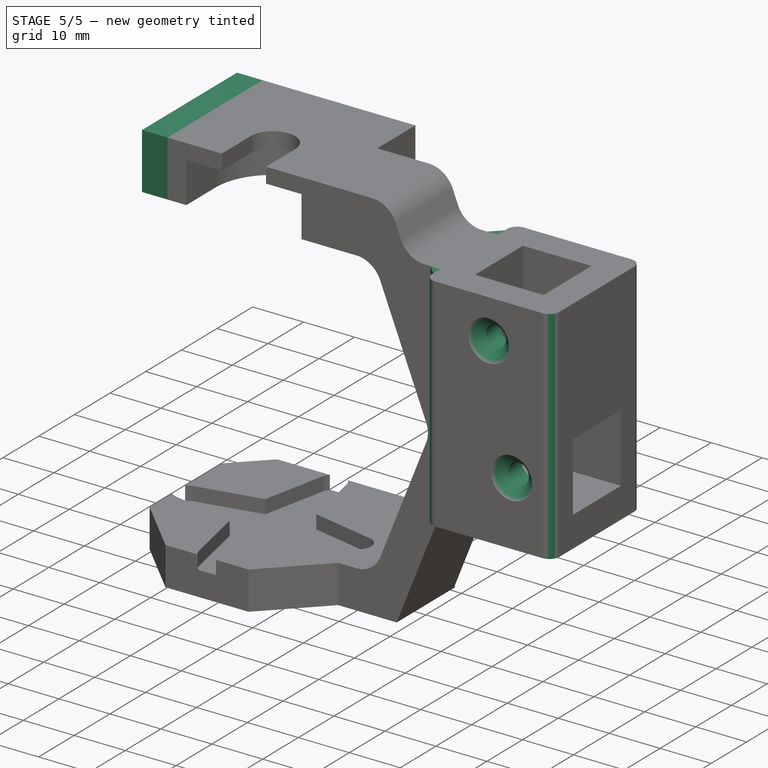
[diagram: stage 5 of 5 — iso view after this stage's code; geometry added in this stage tinted green]
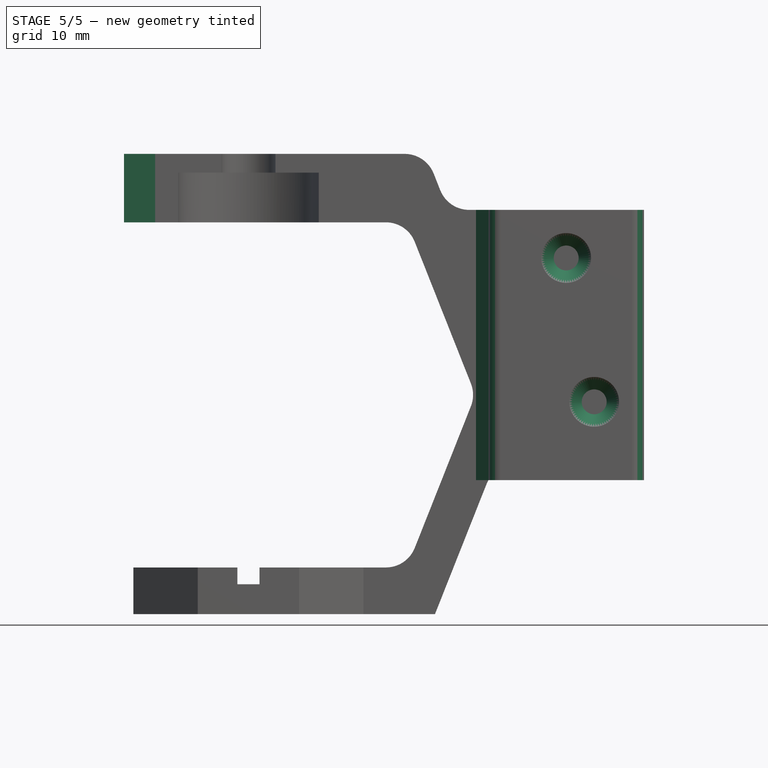
[diagram: stage 5 of 5 — front view after this stage's code; geometry added in this stage tinted green]
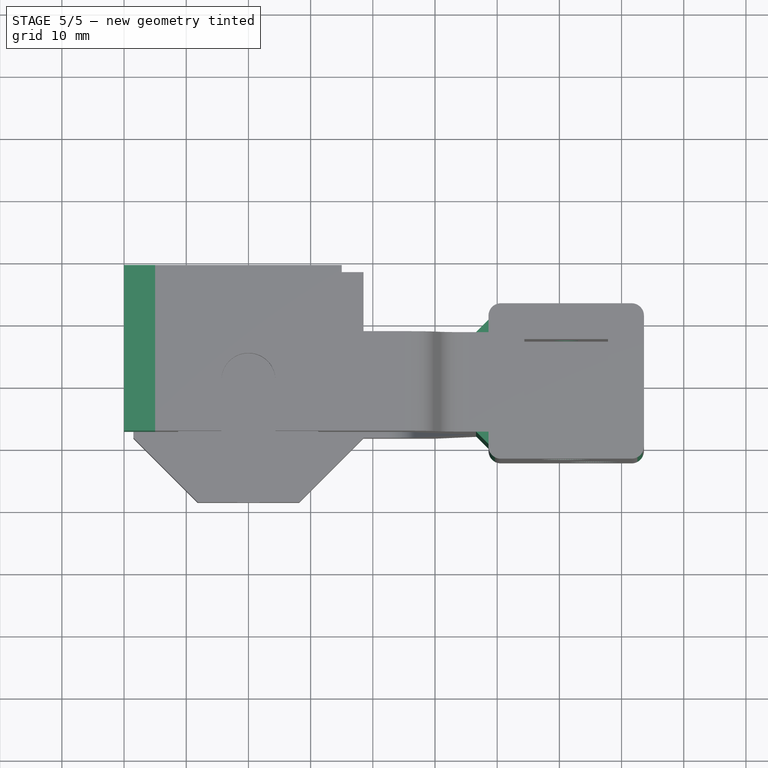
[diagram: stage 5 of 5 — top view after this stage's code; geometry added in this stage tinted green]
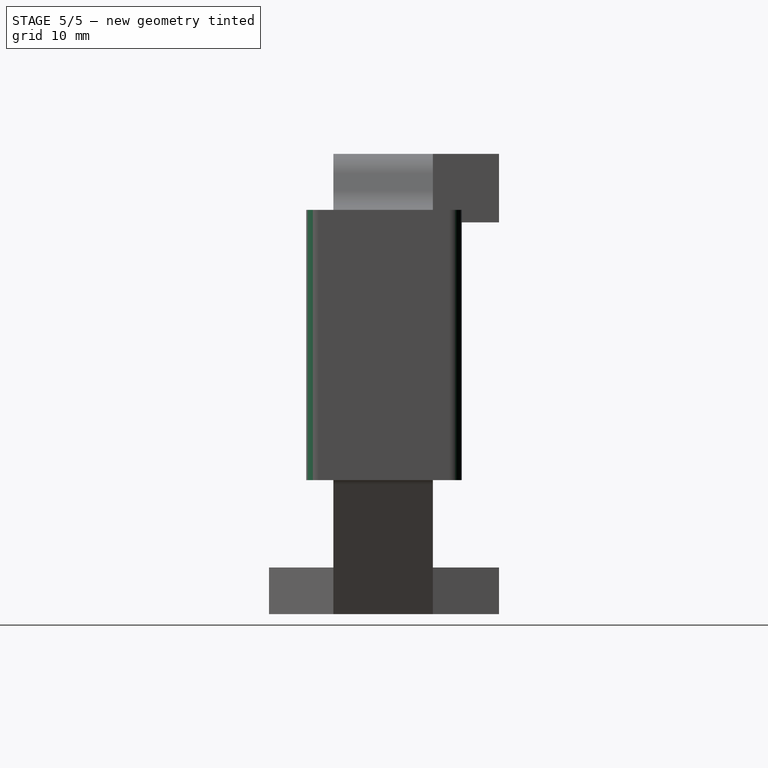
[diagram: stage 5 of 5 — right view after this stage's code; geometry added in this stage tinted green]
FEATURE [Sketcher::SketchObject] Sketch021  label="base_screw_holes1"
  ExternalGeometry = -> [Pocket014]
  MapMode = 5
  Placement = pos=(0,-12.5,0) rot=(1,0,0;1.5708rad)
  Support = -> [Pocket014]
  sketch-geometry (6):
    g0: LineSegment [constr] StartX=38.6 StartY=65 StartZ=0 EndX=63.6 EndY=21.5345 EndZ=0
    g1: LineSegment [constr] StartX=63.6 StartY=65 StartZ=0 EndX=38.6 EndY=21.5345 EndZ=0
    g2: GeomPoint X=51.1 Y=43.2673 Z=0
    g3: LineSegment [constr] StartX=51.1 StartY=21.5345 StartZ=0 EndX=51.1 EndY=34.1345 EndZ=0
    g4: Circle CenterX=55.6 CenterY=34.1345 CenterZ=0 NormalX=0 NormalY=0 NormalZ=1 AngleXU=0 Radius=2
    g5: Circle CenterX=51.1 CenterY=57.2673 CenterZ=0 NormalX=0 NormalY=0 NormalZ=1 AngleXU=0 Radius=2
  constraints (16):
    c: Coincident(g0,g-3)
    c: Coincident(g0,g-4)
    c: Coincident(g1,g-3)
    c: Coincident(g1,g-4)
    c: PointOnObject(g2,g1)
    c: PointOnObject(g2,g0)
    c: PointOnObject(g3,g-4)
    c: Vertical(g3)
    c: DistanceX(g2,g3) = 0
    c: Distance(g3) = 12.6
    c: Radius(g4) = 2
    c: DistanceY(g3,g4) = 0
    c: DistanceX(g4,g0) = 8
    c: DistanceX(g2,g5) = 0
    c: Radius(g5) = 2
    c: Distance(g2,g5) = 14
FEATURE [PartDesign::Pocket] Pocket015
  BaseFeature = -> Pocket014
  Length = 7
  Length2 = 100
  Profile = -> Sketch021
  Type = 0
FEATURE [Sketcher::SketchObject] Sketch022  label="base_screw_holes2"
  ExternalGeometry = -> [Pocket015]
  MapMode = 5
  Placement = pos=(0,12.5,0) rot=(0,0.707107,0.707107;3.14159rad)
  Support = -> [Pocket015]
  sketch-geometry (5):
    g0: LineSegment [constr] StartX=-63.6 StartY=65 StartZ=0 EndX=-38.6 EndY=21.5345 EndZ=0
    g1: LineSegment [constr] StartX=-38.6 StartY=65 StartZ=0 EndX=-63.6 EndY=21.5345 EndZ=0
    g2: GeomPoint X=-51.1 Y=43.2673 Z=0
    g3: Circle CenterX=-49.1 CenterY=34.1345 CenterZ=0 NormalX=0 NormalY=0 NormalZ=1 AngleXU=0 Radius=2
    g4: Circle CenterX=-51.1 CenterY=49.2673 CenterZ=0 NormalX=0 NormalY=0 NormalZ=1 AngleXU=0 Radius=2
  constraints (12):
    c: Coincident(g0,g-4)
    c: Coincident(g0,g-3)
    c: Coincident(g1,g-3)
    c: Coincident(g1,g-4)
    c: PointOnObject(g2,g1)
    c: PointOnObject(g2,g0)
    c: Radius(g3) = 2
    c: DistanceY(g0,g3) = 12.6
    c: DistanceX(g2,g3) = 2
    c: Radius(g4) = 2
    c: DistanceX(g2,g4) = 0
    c: DistanceY(g2,g4) = 6
FEATURE [PartDesign::Pocket] Pocket016
  BaseFeature = -> Pocket015
  Length = 7
  Length2 = 100
  Profile = -> Sketch022
  Type = 0
FEATURE [PartDesign::Chamfer] Chamfer001
  Base = -> Pocket016 [Edge33,Edge5]
  BaseFeature = -> Pocket016
  Size = 2
FEATURE [PartDesign::Chamfer] Chamfer002
  Base = -> Chamfer001 [Edge95,Edge94,Edge101,Edge102]
  BaseFeature = -> Chamfer001
  Size = 2
FEATURE [PartDesign::Fillet] Fillet002
  Base = -> Chamfer002 [Edge40,Edge22,Edge4,Edge3]
  BaseFeature = -> Chamfer002
  Radius = 2
FEATURE [Sketcher::SketchObject] Sketch024  label="BearingWallThickening"
  ExternalGeometry = -> [Fillet002]
  MapMode = 5
  Placement = pos=(-15,0,0) rot=(0.57735,-0.57735,-0.57735;2.0944rad)
  Support = -> [Fillet002]
  sketch-geometry (4):
    g0: LineSegment StartX=-18.5 StartY=74 StartZ=0 EndX=8.15 EndY=74 EndZ=0
    g1: LineSegment StartX=8.15 StartY=74 StartZ=0 EndX=8.15 EndY=63 EndZ=0
    g2: LineSegment StartX=8.15 StartY=63 StartZ=0 EndX=-18.5 EndY=63 EndZ=0
    g3: LineSegment StartX=-18.5 StartY=63 StartZ=0 EndX=-18.5 EndY=74 EndZ=0
  constraints (10):
    c: Coincident(g0,g1)
    c: Coincident(g1,g2)
    c: Coincident(g2,g3)
    c: Coincident(g3,g0)
    c: Horizontal(g0)
    c: Horizontal(g2)
    c: Vertical(g1)
    c: Vertical(g3)
    c: Coincident(g0,g-4)
    c: Coincident(g1,g-3)
FEATURE [PartDesign::Pad] Pad006
  BaseFeature = -> Fillet002
  Length = 5
  Length2 = 100
  Profile = -> Sketch024
  Type = 0
FEATURE [PartDesign::Body] Body
  Group = -> [Sketch,Pad,Sketch001,Pocket,Sketch002,Pad001,Sketch003,Pad002,Sketch004,Pocket001,Sketch005,Pocket002,Sketch006,Pocket003,Sketch007,Pocket004,Sketch008,Pocket005,Sketch009,Pocket006,Sketch010,Pocket007,Sketch012,Pocket009,Sketch013,Pocket010,Fillet,Fillet001,Chamfer,Sketch014,Pad003,Sketch015,Pad004,Sketch016,Pocket011,Sketch017,Pocket012,Sketch018,Pad005,Sketch019,Pocket013,Sketch020,Pocket014,+9 more]
  Origin = -> Origin
  Tip = -> Pad006
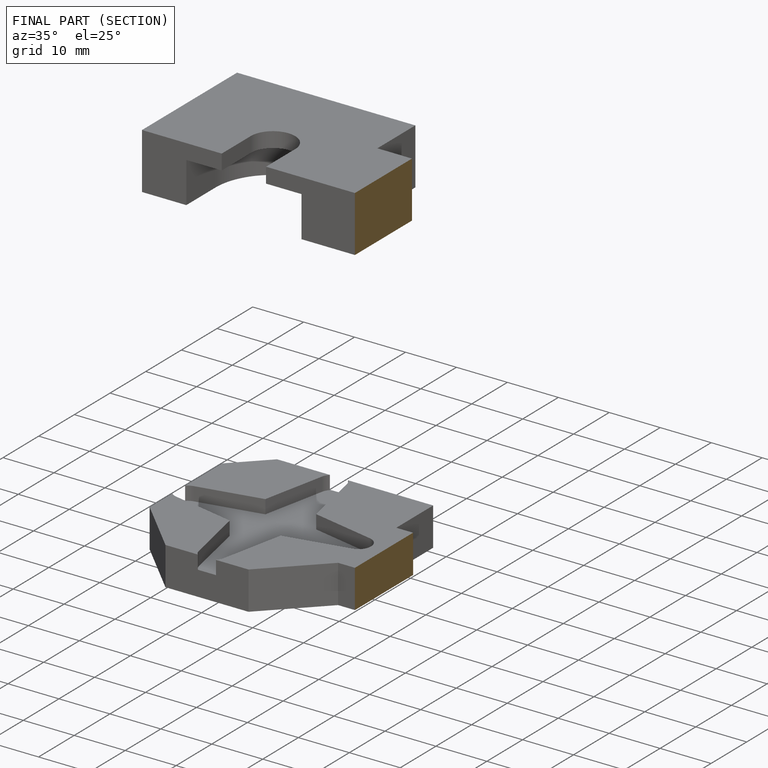
[diagram: finished part — half-section view (interior)]
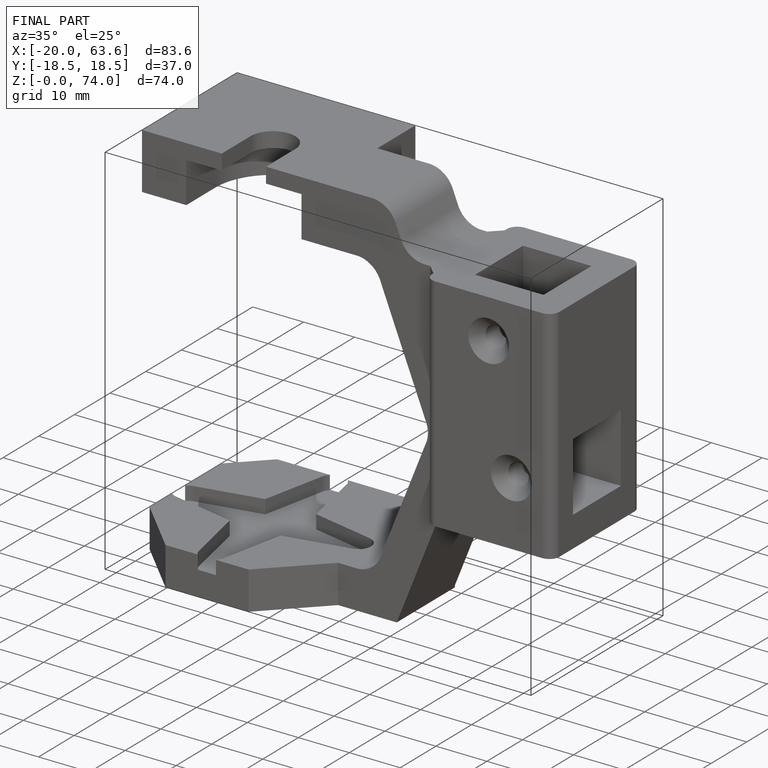
[diagram: finished part — iso view with bounding-box wireframe]
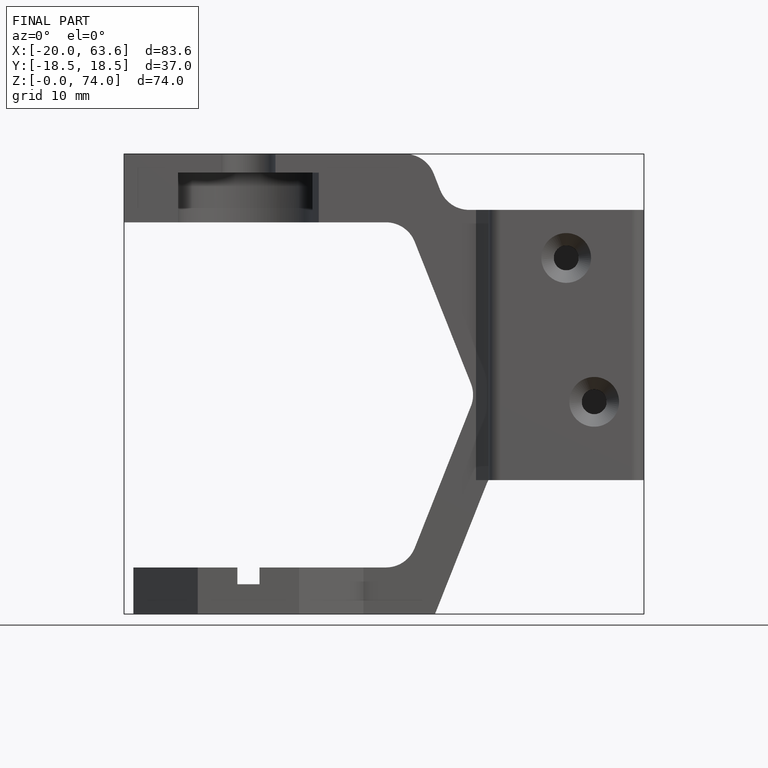
[diagram: finished part — front view with bounding-box wireframe]
